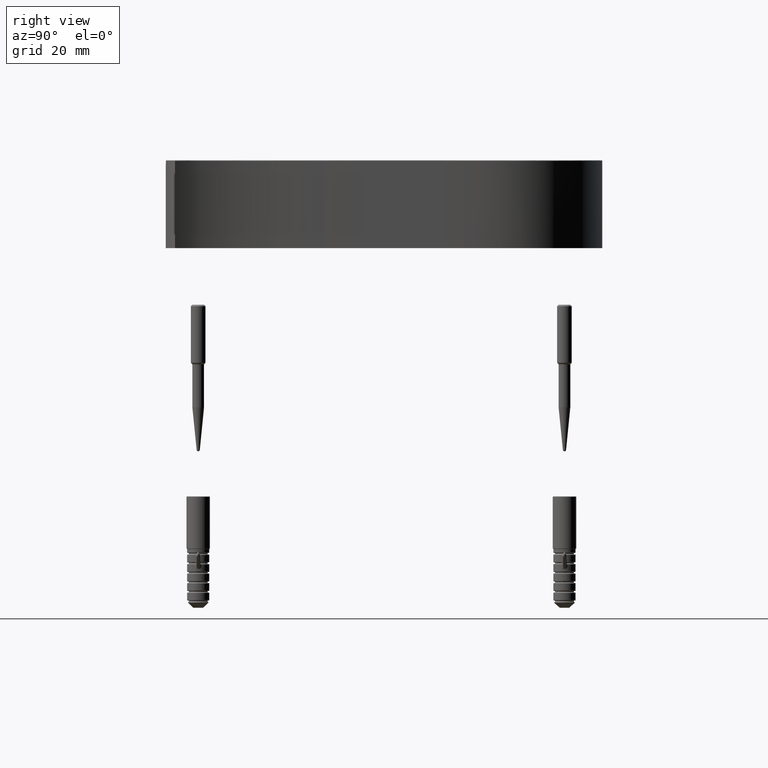
[diagram: clean part render]
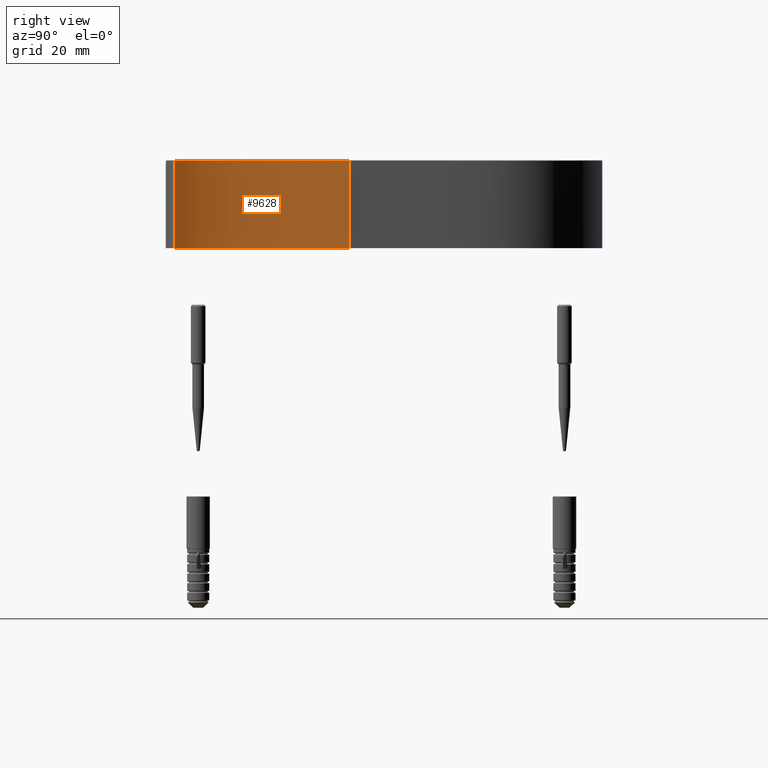
[diagram: same view with one face highlighted and labeled with its STEP entity id]
A machine part, right view. The second image highlights one B-rep face of the part: STEP entity #9628.
In plain terms, the highlighted face is a freeform B-spline surface patch.
Its self-contained STEP definition (entity closure, byte-faithful):
#127 = CARTESIAN_POINT ( 'NONE',  ( 74.54321661517188600, 52.69075035284522800, 1.750000000000000200 ) ) ;
#143 = EDGE_CURVE ( 'NONE', #28304, #3253, #2254, .T. ) ;
#316 = CARTESIAN_POINT ( 'NONE',  ( 77.35176661791902600, 10.01269609857527400, -28.00000000000000000 ) ) ;
#471 = DIRECTION ( 'NONE',  ( -0.0000000000000000000, -0.0000000000000000000, -1.000000000000000000 ) ) ;
#552 = CARTESIAN_POINT ( 'NONE',  ( 81.45720272956792500, 3.180914512922854900, 1.750000000000000000 ) ) ;
#2254 = B_SPLINE_CURVE_WITH_KNOTS ( 'NONE', 3,
 ( #19128, #127, #7221, #16558, #7429, #18815, #11642, #28818, #26548, #26646, #5560, #5250, #19640, #19534, #22000, #7736, #7632, #552 ),
 .UNSPECIFIED., .F., .F.,
 ( 4, 2, 2, 2, 2, 2, 2, 2, 4 ),
 ( 0.0000000000000000000, 0.03041245758147776900, 0.03421401477916249900, 0.03801557197684722600, 0.04561868637221668000, 0.05322180076758614000, 0.05702335796527085300, 0.05892413656411321600, 0.06082491516295558000 ),
 .UNSPECIFIED. ) ;
#2581 = CARTESIAN_POINT ( 'NONE',  ( 74.12605448390391400, 62.82306163021865300, -28.00000000000000000 ) ) ;
#3123 = CARTESIAN_POINT ( 'NONE',  ( 74.12605448390391400, 62.82306163021865300, -28.00000000000000000 ) ) ;
#3253 = VERTEX_POINT ( 'NONE', #6616 ) ;
#5250 = CARTESIAN_POINT ( 'NONE',  ( 78.61924614545341700, 8.901531685495220000, 1.749999999999999800 ) ) ;
#5560 = CARTESIAN_POINT ( 'NONE',  ( 77.32538040067527200, 12.45473208506569300, 1.750000000000000200 ) ) ;
#5918 = EDGE_LOOP ( 'NONE', ( #10522, #24671, #20520, #24917 ) ) ;
#6616 = CARTESIAN_POINT ( 'NONE',  ( 81.45720272956792500, 3.180914512922854900, 1.750000000000000000 ) ) ;
#6694 = CARTESIAN_POINT ( 'NONE',  ( 74.63752208592313800, 50.40019636150724800, -27.99999999999999600 ) ) ;
#6901 = CARTESIAN_POINT ( 'NONE',  ( 74.12605448390391400, 62.82306163021865300, 1.750000000000000200 ) ) ;
#6913 = FACE_OUTER_BOUND ( 'NONE', #5918, .T. ) ;
#7221 = CARTESIAN_POINT ( 'NONE',  ( 74.01269039791310400, 42.54128734790138100, 1.749999999999999600 ) ) ;
#7429 = CARTESIAN_POINT ( 'NONE',  ( 74.59847091113421400, 29.88310569565683400, 1.750000000000000200 ) ) ;
#7632 = CARTESIAN_POINT ( 'NONE',  ( 81.12631920354368700, 3.731531772237658200, 1.750000000000000200 ) ) ;
#7736 = CARTESIAN_POINT ( 'NONE',  ( 80.81011960294961200, 4.290285555910931400, 1.750000000000000400 ) ) ;
#8825 = EDGE_CURVE ( 'NONE', #28304, #29815, #29801, .T. ) ;
#8952 = CARTESIAN_POINT ( 'NONE',  ( 77.35176661791902600, 10.01269609857527400, -27.99999999999999600 ) ) ;
#9164 = CARTESIAN_POINT ( 'NONE',  ( 81.45720272956792500, 3.180914512922858900, -27.99999999999999600 ) ) ;
#9199 = EDGE_CURVE ( 'NONE', #29815, #23327, #14563, .T. ) ;
#9628 = ADVANCED_FACE ( 'NONE', ( #6913 ), #18398, .T. ) ;
#10050 = CARTESIAN_POINT ( 'NONE',  ( 81.45720272956792500, 3.180914512922858900, -28.00000000000000000 ) ) ;
#10522 = ORIENTED_EDGE ( 'NONE', *, *, #8825, .F. ) ;
#11642 = CARTESIAN_POINT ( 'NONE',  ( 74.89288763135543500, 26.08732639407838900, 1.750000000000000400 ) ) ;
#11995 = LINE ( 'NONE', #16058, #21512 ) ;
#12444 = CARTESIAN_POINT ( 'NONE',  ( 81.45720272956792500, 3.180914512922858900, -28.00000000000000000 ) ) ;
#12960 = EDGE_CURVE ( 'NONE', #3253, #23327, #11995, .T. ) ;
#13556 = CARTESIAN_POINT ( 'NONE',  ( 74.63752208592313800, 50.40019636150724800, 1.750000000000000200 ) ) ;
#14369 = CARTESIAN_POINT ( 'NONE',  ( 73.14787314618523300, 30.04936478656546900, -28.00000000000000000 ) ) ;
#14563 = B_SPLINE_CURVE_WITH_KNOTS ( 'NONE', 3,
 ( #2581, #17038, #14369, #316, #10050 ),
 .UNSPECIFIED., .F., .F.,
 ( 4, 1, 4 ),
 ( 0.0000000000000000000, 0.6155772910858190400, 1.000000000000000000 ),
 .UNSPECIFIED. ) ;
#15933 = CARTESIAN_POINT ( 'NONE',  ( 73.14787314618523300, 30.04936478656546900, -27.99999999999999600 ) ) ;
#16058 = CARTESIAN_POINT ( 'NONE',  ( 81.45720272956792500, 3.180914512922854900, 2.000000000000000000 ) ) ;
#16558 = CARTESIAN_POINT ( 'NONE',  ( 74.52601373319166100, 31.14857096096495000, 1.750000000000000000 ) ) ;
#17038 = CARTESIAN_POINT ( 'NONE',  ( 74.63752208592313800, 50.40019636150724800, -28.00000000000000000 ) ) ;
#18398 = B_SPLINE_SURFACE_WITH_KNOTS ( 'NONE', 3, 1, ( 
 ( #6901, #22924 ),
 ( #13556, #6694 ),
 ( #30162, #15933 ),
 ( #23028, #8952 ),
 ( #27886, #9164 ) ),
 .UNSPECIFIED., .F., .F., .F.,
 ( 4, 1, 4 ),
 ( 2, 2 ),
 ( 0.0000000000000000000, 0.6155772910858190400, 1.000000000000000000 ),
 ( 0.0000000000000000000, 1.000000000000000000 ),
 .UNSPECIFIED. ) ;
#18815 = CARTESIAN_POINT ( 'NONE',  ( 74.78187822644143500, 27.35315391266145500, 1.749999999999999800 ) ) ;
#19128 = CARTESIAN_POINT ( 'NONE',  ( 74.12605448390391400, 62.82306163021865300, 1.750000000000000000 ) ) ;
#19534 = CARTESIAN_POINT ( 'NONE',  ( 79.91839390546913100, 5.998273773236944900, 1.750000000000000000 ) ) ;
#19640 = CARTESIAN_POINT ( 'NONE',  ( 79.10256249748681500, 7.730729794468667000, 1.750000000000000200 ) ) ;
#20520 = ORIENTED_EDGE ( 'NONE', *, *, #12960, .T. ) ;
#21512 = VECTOR ( 'NONE', #27098, 1000.000000000000000 ) ;
#21587 = CARTESIAN_POINT ( 'NONE',  ( 74.12605448390391400, 62.82306163021865300, 2.000000000000000000 ) ) ;
#22000 = CARTESIAN_POINT ( 'NONE',  ( 80.20616201349936600, 5.423552932703594300, 1.750000000000000200 ) ) ;
#22924 = CARTESIAN_POINT ( 'NONE',  ( 74.12605448390391400, 62.82306163021865300, -27.99999999999999600 ) ) ;
#23028 = CARTESIAN_POINT ( 'NONE',  ( 77.35176661791902600, 10.01269609857527400, 1.750000000000000200 ) ) ;
#23327 = VERTEX_POINT ( 'NONE', #12444 ) ;
#23479 = VECTOR ( 'NONE', #471, 1000.000000000000000 ) ;
#24671 = ORIENTED_EDGE ( 'NONE', *, *, #143, .T. ) ;
#24917 = ORIENTED_EDGE ( 'NONE', *, *, #9199, .F. ) ;
#26548 = CARTESIAN_POINT ( 'NONE',  ( 75.65496714894504700, 19.80088783494536700, 1.750000000000000200 ) ) ;
#26646 = CARTESIAN_POINT ( 'NONE',  ( 76.67045549181662500, 14.87780539863287500, 1.750000000000000400 ) ) ;
#27098 = DIRECTION ( 'NONE',  ( -0.0000000000000000000, -0.0000000000000000000, -1.000000000000000000 ) ) ;
#27886 = CARTESIAN_POINT ( 'NONE',  ( 81.45720272956792500, 3.180914512922858900, 1.750000000000000200 ) ) ;
#28004 = CARTESIAN_POINT ( 'NONE',  ( 74.12605448390391400, 62.82306163021865300, 1.750000000000000000 ) ) ;
#28304 = VERTEX_POINT ( 'NONE', #28004 ) ;
#28818 = CARTESIAN_POINT ( 'NONE',  ( 75.29479153996325600, 22.30099832160933100, 1.749999999999999800 ) ) ;
#29801 = LINE ( 'NONE', #21587, #23479 ) ;
#29815 = VERTEX_POINT ( 'NONE', #3123 ) ;
#30162 = CARTESIAN_POINT ( 'NONE',  ( 73.14787314618523300, 30.04936478656546900, 1.750000000000000200 ) ) ;